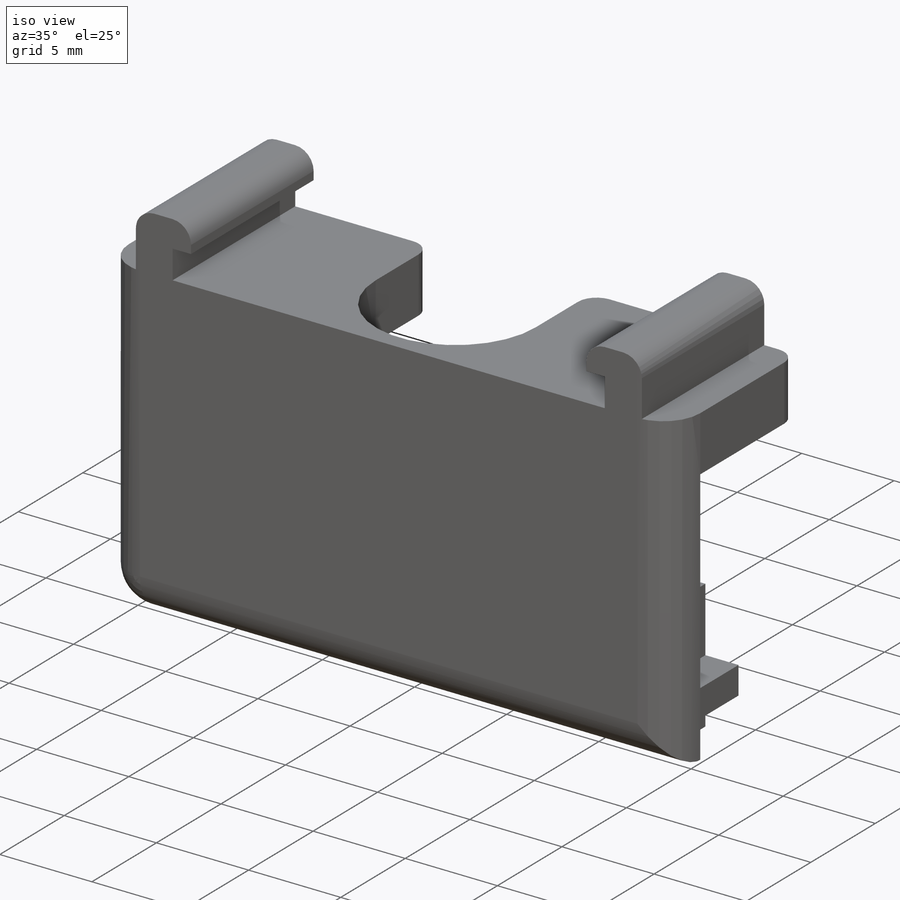
[diagram: iso view]
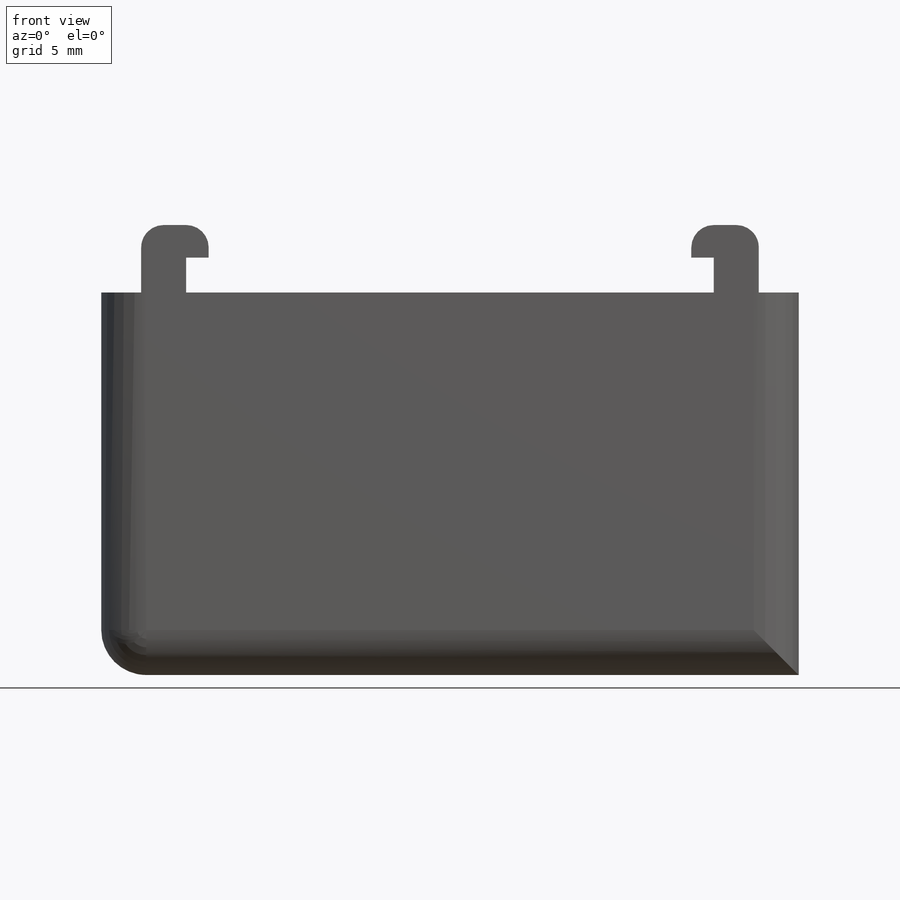
[diagram: front view]
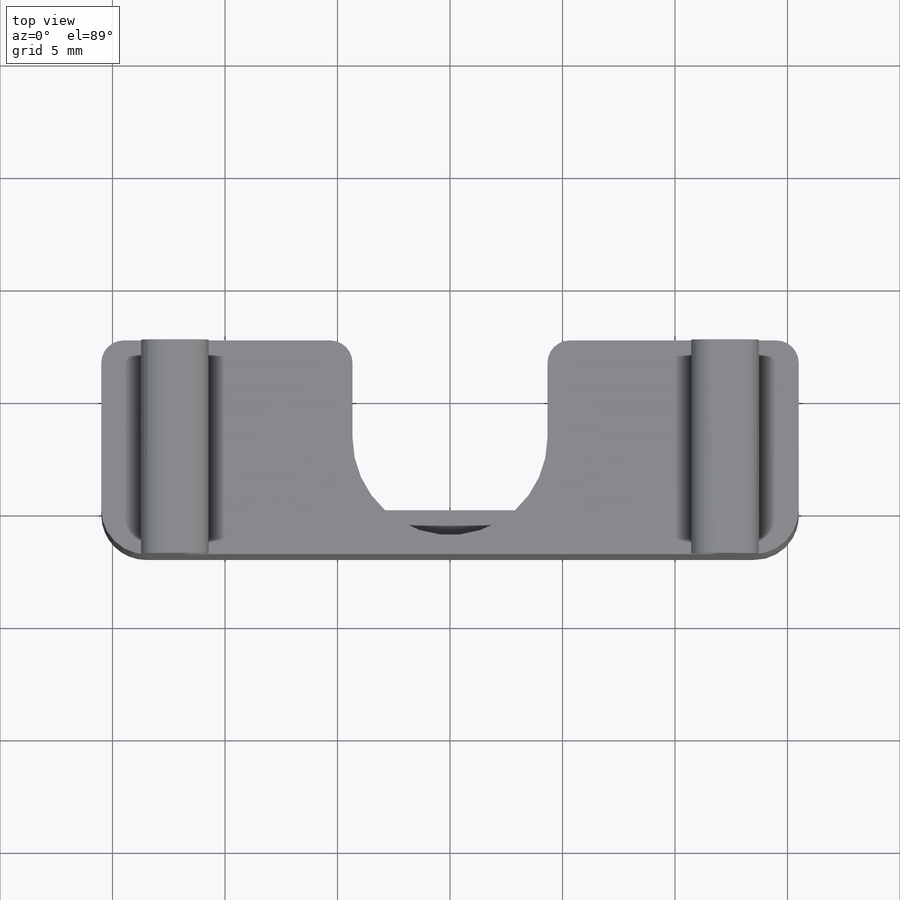
[diagram: top view]
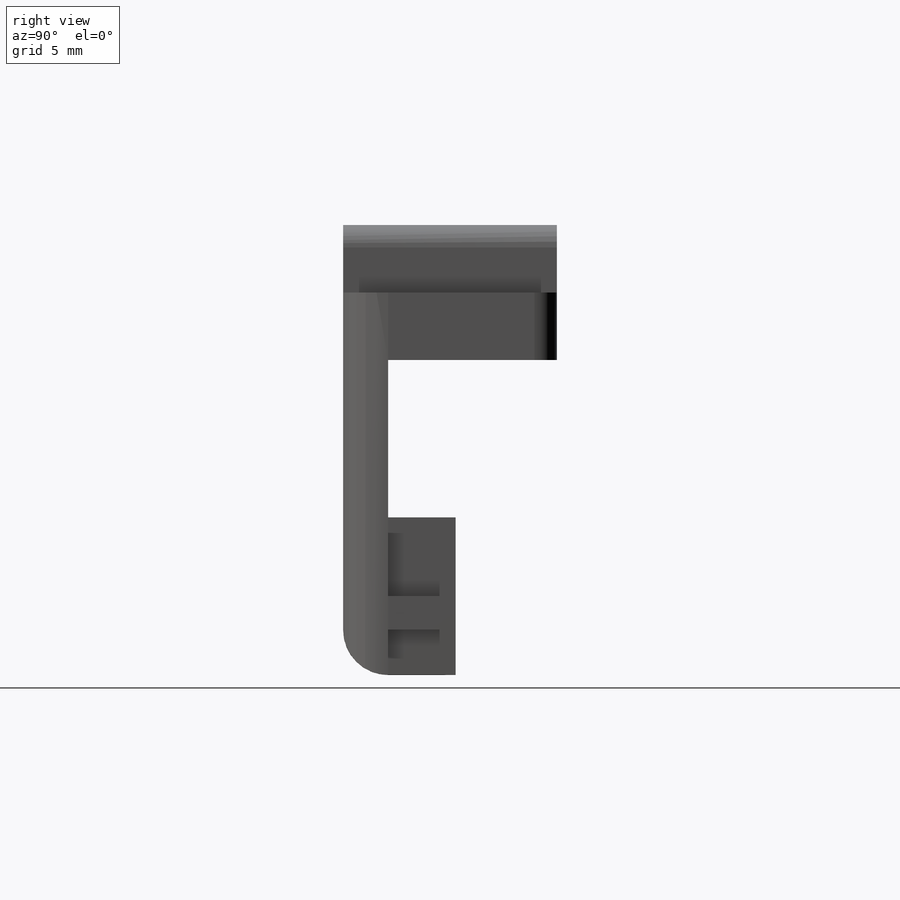
[diagram: right view]
SOLIDWORKS PART (.sldprt)
format: sldprt  version: not decoded by parser v0  size: 450,048 bytes
history: native  units: mm
features: sketch x14, extrude x10, plane x3, fillet x3, material x1, cut_extrude x1 (+13 scaffold rows collapsed)
feature tree (45):
  scaffold x13  (default folders/planes/origin — collapsed)
  material  "Material <não especificado>"
  plane  "Plano frontal"
  plane  "Plano superior"
  plane  "Plano direito"
  sketch  "Esboço1"  dims[D1=31.0mm D2=10.0mm]
  extrude  "Ressalto-extrusão1"  Depth=2mm
  sketch  "Esboço3"  dims[D1=2.0mm D2=1.8mm]
  sketch  "Esboço4"  dims[D1=3.5mm D2=1.8mm D3=~0.010286mm]
  extrude  "Ressalto-extrusão2"  Depth=3mm
  sketch  "Esboço5"
  extrude  "Bloco2"  [1 undecoded]
  extrude  "Ressalto-extrusão3"  Depth=3mm
  sketch  "Esboço7"  dims[D1=1.5mm]
  sketch  "Esboço8"
  extrude  "Ressalto-extrusão4"  Depth=7mm
  sketch  "Esboço9"  dims[D1=3.0mm]
  extrude  "Ressalto-extrusão5"  Depth=7.5mm
  sketch  "Esboço13"  dims[D1=17.5mm]
  sketch  "Esboço14"  dims[D1=3.775mm D2=2.0mm D3=2.0mm]
  extrude  "Ressalto-extrusão7"  Depth=3mm
  sketch  "Esboço15"  dims[D1=3.775mm D2=2.0mm]
  extrude  "Ressalto-extrusão8"  Depth=3mm
  sketch  "Esboço16"  dims[D1=1.45mm]
  extrude  "Ressalto-extrusão11"  Depth=1mm
  sketch  "Esboço18"  dims[D1=1.45mm]
  extrude  "Ressalto-extrusão12"  Depth=1mm
  sketch  "Esboço19"
  cut_extrude  "Corte-extrusão2"  [1 undecoded]
  fillet  "Filete1"  Radius=2mm
  fillet  "Filete2"  Radius=2mm
  fillet  "Filete3"  Radius=1mm
  sketch  "Esboço20"  dims[D1=14.0mm D2=2.9mm D3=9.0mm]
decode coverage: 23 of 28 modeling features carry decoded parameters
note: ~ marks probable driven/reference dimensions
note: 2 parameter values undecoded
note: suppression state not decoded; provenance and decode notes live in map.json
